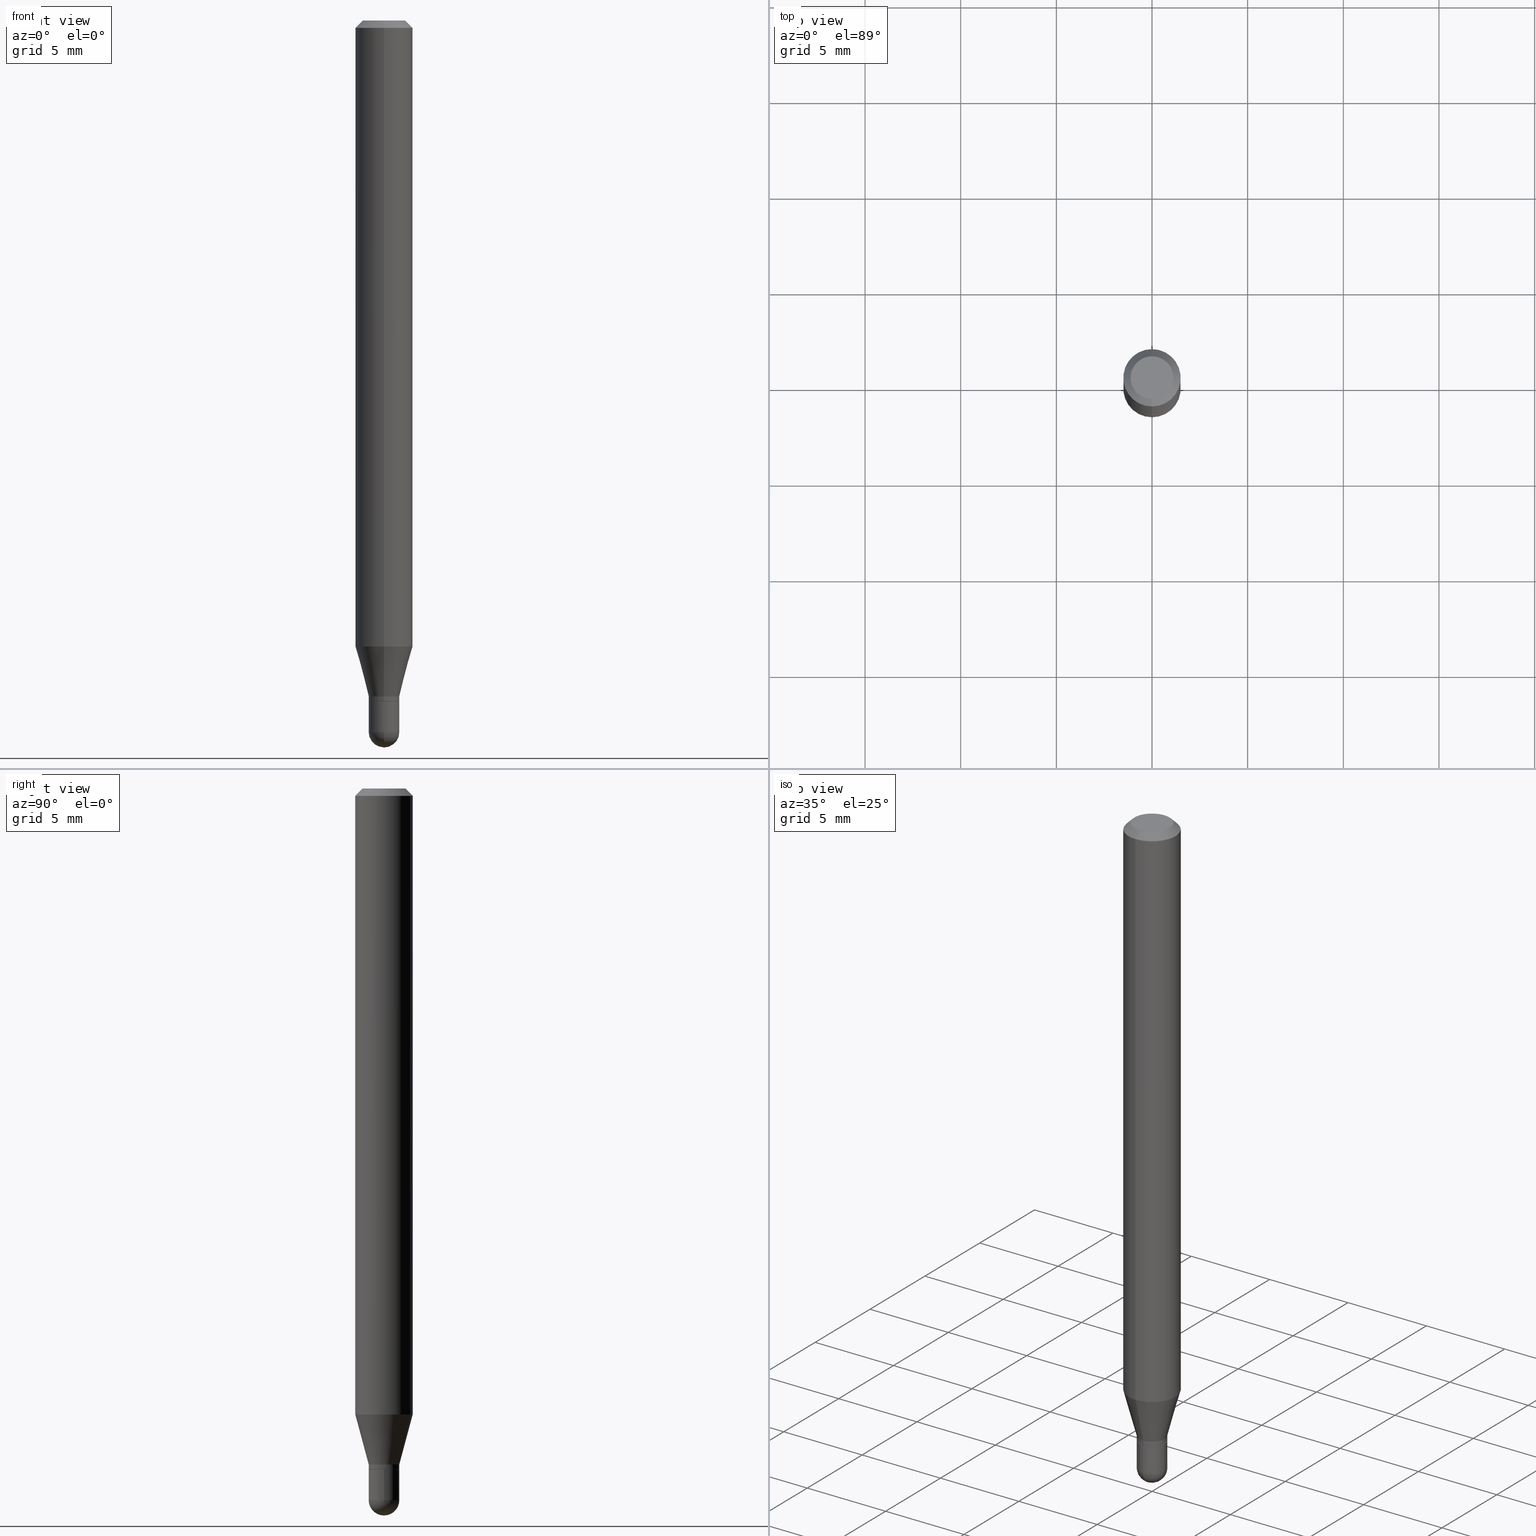
[diagram: canonical four-view strip — front | top / right | iso, engineering-drawing reading convention]
A machine part, canonical four-view strip (front | top / right | iso — engineering-drawing reading convention). The complete STEP part file that produces these views, byte-faithful:
ISO-10303-21;
HEADER;
FILE_DESCRIPTION (( 'STEP AP203' ),
    '1' );
FILE_NAME ('02921.STEP',
    '2024-03-07T21:44:08',
    ( '' ),
    ( '' ),
    'SwSTEP 2.0',
    'SolidWorks 2023',
    '' );
FILE_SCHEMA (( 'CONFIG_CONTROL_DESIGN' ));
ENDSEC;

DATA;
#1 = DIRECTION ( 'NONE',  ( -6.982962677686265922E-15, -1.000000000000000000, 3.491461542742673590E-15 ) ) ;
#2 = EDGE_LOOP ( 'NONE', ( #31, #500, #262, #511 ) ) ;
#3 = DIRECTION ( 'NONE',  ( 2.445482629728212427E-29, -3.491461542742673984E-15, -1.000000000000000000 ) ) ;
#4 = APPROVAL_PERSON_ORGANIZATION ( #251, #457, #288 ) ;
#5 = EDGE_LOOP ( 'NONE', ( #475, #204, #338, #79 ) ) ;
#6 = CARTESIAN_POINT ( 'NONE',  ( 3.401910886214915663E-29, -4.856972152109333718E-15, -1.391099999999999781 ) ) ;
#7 = PERSON_AND_ORGANIZATION ( #178, #12 ) ;
#8 = AXIS2_PLACEMENT_3D ( 'NONE', #264, #173, #327 ) ;
#9 = ORIENTED_EDGE ( 'NONE', *, *, #394, .F. ) ;
#10 = APPROVAL_DATE_TIME ( #395, #429 ) ;
#11 = ADVANCED_FACE ( 'NONE', ( #332 ), #326, .T. ) ;
#12 = ORGANIZATION ( 'UNSPECIFIED', 'UNSPECIFIED', '' ) ;
#13 = DATE_TIME_ROLE ( 'classification_date' ) ;
#14 = DIRECTION ( 'NONE',  ( -2.445482629728212427E-29, 3.491461542742673590E-15, 1.000000000000000000 ) ) ;
#15 = ADVANCED_FACE ( 'NONE', ( #375 ), #142, .F. ) ;
#16 = APPROVAL_ROLE ( '' ) ;
#17 = CYLINDRICAL_SURFACE ( 'NONE', #54, 0.03150000000000000716 ) ;
#18 = AXIS2_PLACEMENT_3D ( 'NONE', #87, #241, #163 ) ;
#19 = FACE_OUTER_BOUND ( 'NONE', #222, .T. ) ;
#20 = ORIENTED_EDGE ( 'NONE', *, *, #155, .T. ) ;
#21 = AXIS2_PLACEMENT_3D ( 'NONE', #65, #99, #143 ) ;
#22 = DIRECTION ( 'NONE',  ( -2.445468806185136877E-29, 3.491481338843145188E-15, 1.000000000000000000 ) ) ;
#23 = EDGE_CURVE ( 'NONE', #33, #393, #139, .T. ) ;
#24 = DIRECTION ( 'NONE',  ( -6.982962677686265133E-15, -1.000000000000000000, 3.491461542742673984E-15 ) ) ;
#25 = DIRECTION ( 'NONE',  ( -6.982962677686265922E-15, -1.000000000000000000, 0.000000000000000000 ) ) ;
#26 = DIRECTION ( 'NONE',  ( -2.445468806185136877E-29, 3.491481338843145188E-15, 1.000000000000000000 ) ) ;
#27 = AXIS2_PLACEMENT_3D ( 'NONE', #374, #136, #218 ) ;
#28 = LOCAL_TIME ( 16, 44, 8.000000000000000000, #359 ) ;
#29 = FACE_OUTER_BOUND ( 'NONE', #131, .T. ) ;
#30 = CARTESIAN_POINT ( 'NONE',  ( 0.000000000000000000, 0.000000000000000000, 0.000000000000000000 ) ) ;
#31 = ORIENTED_EDGE ( 'NONE', *, *, #426, .F. ) ;
#32 = CC_DESIGN_PERSON_AND_ORGANIZATION_ASSIGNMENT ( #392, #42, ( #445 ) ) ;
#33 = VERTEX_POINT ( 'NONE', #448 ) ;
#34 = FACE_OUTER_BOUND ( 'NONE', #74, .T. ) ;
#35 = DIRECTION ( 'NONE',  ( 0.000000000000000000, 0.000000000000000000, 1.000000000000000000 ) ) ;
#36 = VECTOR ( 'NONE', #398, 39.37007874015748143 ) ;
#37 = ORIENTED_EDGE ( 'NONE', *, *, #379, .T. ) ;
#38 = FACE_OUTER_BOUND ( 'NONE', #114, .T. ) ;
#39 = DIRECTION ( 'NONE',  ( 1.000000000000000000, 0.000000000000000000, 0.000000000000000000 ) ) ;
#40 = AXIS2_PLACEMENT_3D ( 'NONE', #107, #499, #442 ) ;
#41 = EDGE_LOOP ( 'NONE', ( #198, #385 ) ) ;
#42 = PERSON_AND_ORGANIZATION_ROLE ( 'design_owner' ) ;
#43 = VERTEX_POINT ( 'NONE', #408 ) ;
#44 = ORIENTED_EDGE ( 'NONE', *, *, #334, .T. ) ;
#45 = VERTEX_POINT ( 'NONE', #213 ) ;
#46 = APPROVAL_STATUS ( 'not_yet_approved' ) ;
#47 = ADVANCED_FACE ( 'NONE', ( #221 ), #294, .T. ) ;
#48 = VERTEX_POINT ( 'NONE', #185 ) ;
#49 = APPLICATION_CONTEXT ( 'configuration controlled 3d designs of mechanical parts and assemblies' ) ;
#50 = ORIENTED_EDGE ( 'NONE', *, *, #357, .T. ) ;
#51 = CARTESIAN_POINT ( 'NONE',  ( -3.536586717851222218E-16, -0.04404999999999999888, 6.213319602340940771E-17 ) ) ;
#52 = DATE_TIME_ROLE ( 'creation_date' ) ;
#53 = EDGE_LOOP ( 'NONE', ( #238, #345, #256, #119, #315 ) ) ;
#54 = AXIS2_PLACEMENT_3D ( 'NONE', #58, #135, #413 ) ;
#55 = EDGE_CURVE ( 'NONE', #387, #202, #410, .T. ) ;
#56 = PRODUCT_DEFINITION_FORMATION_WITH_SPECIFIED_SOURCE ( 'ANY', '', #445, .NOT_KNOWN. ) ;
#57 = CALENDAR_DATE ( 2024, 7, 3 ) ;
#58 = CARTESIAN_POINT ( 'NONE',  ( 0.000000000000000000, 0.000000000000000000, 0.000000000000000000 ) ) ;
#59 = ORIENTED_EDGE ( 'NONE', *, *, #307, .T. ) ;
#60 = CARTESIAN_POINT ( 'NONE',  ( 3.426365712512197686E-29, -4.891886767536760217E-15, -1.401100000000000012 ) ) ;
#61 = ORIENTED_EDGE ( 'NONE', *, *, #512, .F. ) ;
#62 = AXIS2_PLACEMENT_3D ( 'NONE', #78, #35, #39 ) ;
#63 = EDGE_CURVE ( 'NONE', #192, #125, #140, .T. ) ;
#64 = DIRECTION ( 'NONE',  ( -2.445482629728212427E-29, 3.491461542742673984E-15, 1.000000000000000000 ) ) ;
#65 = CARTESIAN_POINT ( 'NONE',  ( 3.427569078749087191E-29, -4.893660244522552864E-15, -1.401599999999999957 ) ) ;
#66 = EDGE_LOOP ( 'NONE', ( #462, #363, #278, #148 ) ) ;
#67 = CIRCLE ( 'NONE', #495, 0.03149999999999991696 ) ;
#68 = CARTESIAN_POINT ( 'NONE',  ( 3.216982236154178205E-16, 0.03149999999999505973, -1.391099999999999781 ) ) ;
#69 = LINE ( 'NONE', #367, #147 ) ;
#70 = CC_DESIGN_PERSON_AND_ORGANIZATION_ASSIGNMENT ( #170, #166, ( #267 ) ) ;
#71 = ORIENTED_EDGE ( 'NONE', *, *, #171, .T. ) ;
#72 = CARTESIAN_POINT ( 'NONE',  ( 3.578939839727836152E-29, -5.117481206286984227E-15, -1.464599999999999902 ) ) ;
#73 = DIRECTION ( 'NONE',  ( -6.982962677686265922E-15, -1.000000000000000000, 0.000000000000000000 ) ) ;
#74 = EDGE_LOOP ( 'NONE', ( #61, #195, #349, #352 ) ) ;
#75 = DIRECTION ( 'NONE',  ( -6.982962677686265922E-15, -1.000000000000000000, 3.491461542742673984E-15 ) ) ;
#76 = ORIENTED_EDGE ( 'NONE', *, *, #146, .T. ) ;
#77 = VECTOR ( 'NONE', #227, 39.37007874015748143 ) ;
#78 = CARTESIAN_POINT ( 'NONE',  ( 0.000000000000000000, 0.000000000000000000, 0.000000000000000000 ) ) ;
#79 = ORIENTED_EDGE ( 'NONE', *, *, #186, .F. ) ;
#80 = DIRECTION ( 'NONE',  ( -2.445482629728212427E-29, 3.491461542742673984E-15, 1.000000000000000000 ) ) ;
#81 = EDGE_LOOP ( 'NONE', ( #71, #20 ) ) ;
#82 = CARTESIAN_POINT ( 'NONE',  ( 4.123439461173743285E-16, 0.05904999999999994975, -0.01500000000000029955 ) ) ;
#83 = EDGE_CURVE ( 'NONE', #242, #33, #226, .T. ) ;
#84 = DIRECTION ( 'NONE',  ( -2.445482629728212427E-29, 3.491461542742673590E-15, 1.000000000000000000 ) ) ;
#85 = AXIS2_PLACEMENT_3D ( 'NONE', #123, #482, #129 ) ;
#86 = ORIENTED_EDGE ( 'NONE', *, *, #83, .F. ) ;
#87 = CARTESIAN_POINT ( 'NONE',  ( 3.150471253806504168E-29, -4.497987060085641190E-15, -1.288282000251477433 ) ) ;
#88 = APPLICATION_PROTOCOL_DEFINITION ( 'international standard', 'config_control_design', 1994, #261 ) ;
#89 = ORIENTED_EDGE ( 'NONE', *, *, #186, .T. ) ;
#90 = DATE_AND_TIME ( #57, #247 ) ;
#91 = MANIFOLD_SOLID_BREP ( 'Body-Move/Copy2[1]', #271 ) ;
#92 = DIRECTION ( 'NONE',  ( -2.445482629728212147E-29, 3.491461542742673590E-15, 1.000000000000000000 ) ) ;
#93 = ORIENTED_EDGE ( 'NONE', *, *, #259, .F. ) ;
#94 = DIRECTION ( 'NONE',  ( -2.445482629728212427E-29, 3.491461542742673984E-15, 1.000000000000000000 ) ) ;
#95 = VERTEX_POINT ( 'NONE', #304 ) ;
#96 = PERSON_AND_ORGANIZATION ( #178, #12 ) ;
#97 = LOCAL_TIME ( 16, 44, 8.000000000000000000, #210 ) ;
#98 = CARTESIAN_POINT ( 'NONE',  ( -2.199633243470827763E-16, -0.03150000000000477418, -1.391099999999999781 ) ) ;
#99 = DIRECTION ( 'NONE',  ( -2.445468806185136597E-29, 3.491481338843145583E-15, 1.000000000000000000 ) ) ;
#100 = DIRECTION ( 'NONE',  ( -2.445468806185136597E-29, 3.491481338843145583E-15, 1.000000000000000000 ) ) ;
#101 = ADVANCED_FACE ( 'NONE', ( #370 ), #17, .T. ) ;
#102 = CARTESIAN_POINT ( 'NONE',  ( -4.051124067684085231E-16, -0.05905000000000005383, -0.01499999999999988495 ) ) ;
#103 = SPHERICAL_SURFACE ( 'NONE', #281, 0.03149999999999996553 ) ;
#104 = VECTOR ( 'NONE', #201, 39.37007874015748143 ) ;
#105 = CARTESIAN_POINT ( 'NONE',  ( 3.578939839727836152E-29, -5.117481206286984227E-15, -1.464599999999999902 ) ) ;
#106 = DIRECTION ( 'NONE',  ( -6.982962677686266711E-15, -1.000000000000000000, 0.000000000000000000 ) ) ;
#107 = CARTESIAN_POINT ( 'NONE',  ( 2.199633243471516537E-16, 0.03149999999999510830, -1.401599999999999957 ) ) ;
#108 = AXIS2_PLACEMENT_3D ( 'NONE', #305, #491, #138 ) ;
#109 = DIRECTION ( 'NONE',  ( -2.445482629728212427E-29, 3.491461542742673984E-15, 1.000000000000000000 ) ) ;
#110 = ADVANCED_FACE ( 'NONE', ( #19 ), #444, .T. ) ;
#111 = LINE ( 'NONE', #422, #77 ) ;
#112 = ADVANCED_BREP_SHAPE_REPRESENTATION ( '02921', ( #91, #260, #62 ), #355 ) ;
#113 = CYLINDRICAL_SURFACE ( 'NONE', #240, 0.03149999999999992389 ) ;
#114 = EDGE_LOOP ( 'NONE', ( #423, #274 ) ) ;
#115 = FACE_OUTER_BOUND ( 'NONE', #174, .T. ) ;
#116 = VERTEX_POINT ( 'NONE', #418 ) ;
#117 = AXIS2_PLACEMENT_3D ( 'NONE', #342, #503, #149 ) ;
#118 = DIRECTION ( 'NONE',  ( -2.445482629728212427E-29, 3.491461542742673984E-15, 1.000000000000000000 ) ) ;
#119 = ORIENTED_EDGE ( 'NONE', *, *, #447, .F. ) ;
#120 = ADVANCED_FACE ( 'NONE', ( #215 ), #453, .F. ) ;
#121 = DIRECTION ( 'NONE',  ( -2.445482629728212427E-29, 3.491461542742673984E-15, 1.000000000000000000 ) ) ;
#122 = ORIENTED_EDGE ( 'NONE', *, *, #405, .T. ) ;
#123 = CARTESIAN_POINT ( 'NONE',  ( 3.581633613538751591E-29, -5.113623568869670202E-15, -1.464599999999999902 ) ) ;
#124 = CIRCLE ( 'NONE', #190, 0.05904999999999999832 ) ;
#125 = VERTEX_POINT ( 'NONE', #98 ) ;
#126 = AXIS2_PLACEMENT_3D ( 'NONE', #188, #121, #73 ) ;
#127 = LINE ( 'NONE', #285, #478 ) ;
#128 = EDGE_CURVE ( 'NONE', #192, #354, #230, .T. ) ;
#129 = DIRECTION ( 'NONE',  ( 1.000000000000000000, -6.982962677686254878E-15, 0.000000000000000000 ) ) ;
#130 = APPROVAL_PERSON_ORGANIZATION ( #325, #183, #16 ) ;
#131 = EDGE_LOOP ( 'NONE', ( #9, #76, #89, #200 ) ) ;
#132 = COORDINATED_UNIVERSAL_TIME_OFFSET ( 5, 0, .BEHIND. ) ;
#133 = CARTESIAN_POINT ( 'NONE',  ( -2.164718430082399417E-16, -0.03100000000000489170, -1.401599999999999957 ) ) ;
#134 = CC_DESIGN_PERSON_AND_ORGANIZATION_ASSIGNMENT ( #7, #361, ( #56 ) ) ;
#135 = DIRECTION ( 'NONE',  ( -2.445468806185136597E-29, 3.491481338843145583E-15, 1.000000000000000000 ) ) ;
#136 = DIRECTION ( 'NONE',  ( 2.445482629728212147E-29, -3.491461542742673590E-15, -1.000000000000000000 ) ) ;
#137 = EDGE_CURVE ( 'NONE', #152, #202, #416, .T. ) ;
#138 = DIRECTION ( 'NONE',  ( 6.982962677686265922E-15, 1.000000000000000000, -3.505890868245046092E-15 ) ) ;
#139 = CIRCLE ( 'NONE', #224, 0.03150000000000000716 ) ;
#140 = LINE ( 'NONE', #377, #216 ) ;
#141 = ORIENTED_EDGE ( 'NONE', *, *, #477, .F. ) ;
#142 = PLANE ( 'NONE',  #40 ) ;
#143 = DIRECTION ( 'NONE',  ( 1.000000000000000000, -6.982962677686255667E-15, 0.000000000000000000 ) ) ;
#144 = CARTESIAN_POINT ( 'NONE',  ( 4.195754854663704065E-16, 0.05904999999999547416, -1.288282000251477655 ) ) ;
#145 = CIRCLE ( 'NONE', #324, 0.05904999999999999832 ) ;
#146 = EDGE_CURVE ( 'NONE', #390, #95, #298, .T. ) ;
#147 = VECTOR ( 'NONE', #14, 39.37007874015748143 ) ;
#148 = ORIENTED_EDGE ( 'NONE', *, *, #290, .F. ) ;
#149 = DIRECTION ( 'NONE',  ( 1.000000000000000000, -6.982962677686254878E-15, 0.000000000000000000 ) ) ;
#150 = LENGTH_MEASURE_WITH_UNIT ( LENGTH_MEASURE( 0.02539999999999999897 ), #343 );
#151 = DIRECTION ( 'NONE',  ( -2.445482629728212427E-29, 3.491461542742673984E-15, 1.000000000000000000 ) ) ;
#152 = VERTEX_POINT ( 'NONE', #455 ) ;
#153 = CARTESIAN_POINT ( 'NONE',  ( 0.03150000000000000716, -2.199633243471174122E-16, 1.535995684375720062E-30 ) ) ;
#154 = VECTOR ( 'NONE', #26, 39.37007874015748143 ) ;
#155 = EDGE_CURVE ( 'NONE', #48, #45, #231, .T. ) ;
#156 = ORIENTED_EDGE ( 'NONE', *, *, #417, .T. ) ;
#157 = ORIENTED_EDGE ( 'NONE', *, *, #447, .T. ) ;
#158 = EDGE_CURVE ( 'NONE', #354, #464, #69, .T. ) ;
#159 = LINE ( 'NONE', #82, #36 ) ;
#160 = CC_DESIGN_DATE_AND_TIME_ASSIGNMENT ( #365, #13, ( #267 ) ) ;
#161 = DIRECTION ( 'NONE',  ( -2.445468806185136597E-29, 3.491481338843145583E-15, 1.000000000000000000 ) ) ;
#162 = EDGE_LOOP ( 'NONE', ( #141, #383, #50, #157, #468 ) ) ;
#163 = DIRECTION ( 'NONE',  ( -6.982962677686265922E-15, -1.000000000000000000, 4.626330217890369336E-15 ) ) ;
#164 = CIRCLE ( 'NONE', #341, 0.03149999999999996553 ) ;
#165 = FACE_OUTER_BOUND ( 'NONE', #5, .T. ) ;
#166 = PERSON_AND_ORGANIZATION_ROLE ( 'classification_officer' ) ;
#167 = AXIS2_PLACEMENT_3D ( 'NONE', #331, #182, #493 ) ;
#168 = PRODUCT_RELATED_PRODUCT_CATEGORY ( 'detail', '', ( #445 ) ) ;
#169 = DIRECTION ( 'NONE',  ( -2.445482629728212427E-29, 3.491461542742673984E-15, 1.000000000000000000 ) ) ;
#170 = PERSON_AND_ORGANIZATION ( #178, #12 ) ;
#171 = EDGE_CURVE ( 'NONE', #45, #48, #297, .T. ) ;
#172 = CIRCLE ( 'NONE', #117, 0.03150000000000000716 ) ;
#173 = DIRECTION ( 'NONE',  ( -2.445468806185136597E-29, 3.491481338843145583E-15, 1.000000000000000000 ) ) ;
#174 = EDGE_LOOP ( 'NONE', ( #236, #301, #225, #309 ) ) ;
#175 = PERSON_AND_ORGANIZATION_ROLE ( 'design_supplier' ) ;
#176 = VECTOR ( 'NONE', #490, 39.37007874015748143 ) ;
#177 = CARTESIAN_POINT ( 'NONE',  ( 0.000000000000000000, 0.000000000000000000, 0.000000000000000000 ) ) ;
#178 = PERSON ( 'UNSPECIFIED', 'UNSPECIFIED', 'UNSPECIFIED', ('UNSPECIFIED'), ('UNSPECIFIED'), ('UNSPECIFIED') ) ;
#179 = DIRECTION ( 'NONE',  ( -6.982962677686265922E-15, -1.000000000000000000, 0.000000000000000000 ) ) ;
#180 = LOCAL_TIME ( 16, 44, 8.000000000000000000, #132 ) ;
#181 = ORIENTED_EDGE ( 'NONE', *, *, #137, .T. ) ;
#182 = DIRECTION ( 'NONE',  ( -2.445482629728212427E-29, 3.491461542742673984E-15, 1.000000000000000000 ) ) ;
#183 = APPROVAL ( #257, 'UNSPECIFIED' ) ;
#184 = CYLINDRICAL_SURFACE ( 'NONE', #496, 0.03149999999999992389 ) ;
#185 = CARTESIAN_POINT ( 'NONE',  ( -0.03150000000000000022, -4.779820944931679381E-15, -1.401599999999999957 ) ) ;
#186 = EDGE_CURVE ( 'NONE', #95, #192, #487, .T. ) ;
#187 = LINE ( 'NONE', #153, #154 ) ;
#188 = CARTESIAN_POINT ( 'NONE',  ( 3.427588453827062320E-29, -4.893632498308130950E-15, -1.401599999999999957 ) ) ;
#189 = PRODUCT_DEFINITION_SHAPE ( 'NONE', 'NONE',  #323 ) ;
#190 = AXIS2_PLACEMENT_3D ( 'NONE', #268, #118, #339 ) ;
#191 = LINE ( 'NONE', #470, #282 ) ;
#192 = VERTEX_POINT ( 'NONE', #474 ) ;
#193 = DIRECTION ( 'NONE',  ( -2.445482629728212427E-29, 3.491461542742673984E-15, 1.000000000000000000 ) ) ;
#194 = UNCERTAINTY_MEASURE_WITH_UNIT (LENGTH_MEASURE( 1.000000000000000082E-05 ), #465, 'distance_accuracy_value', 'NONE');
#195 = ORIENTED_EDGE ( 'NONE', *, *, #214, .T. ) ;
#196 = CARTESIAN_POINT ( 'NONE',  ( 3.401910886214915663E-29, -4.856972152109333718E-15, -1.391099999999999781 ) ) ;
#197 = ADVANCED_FACE ( 'NONE', ( #29 ), #461, .T. ) ;
#198 = ORIENTED_EDGE ( 'NONE', *, *, #454, .T. ) ;
#199 = CC_DESIGN_SECURITY_CLASSIFICATION ( #267, ( #56 ) ) ;
#200 = ORIENTED_EDGE ( 'NONE', *, *, #386, .F. ) ;
#201 = DIRECTION ( 'NONE',  ( 5.024295867788190974E-15, 0.7071067811865681119, 0.7071067811865270336 ) ) ;
#202 = VERTEX_POINT ( 'NONE', #430 ) ;
#203 = EDGE_CURVE ( 'NONE', #492, #152, #111, .T. ) ;
#204 = ORIENTED_EDGE ( 'NONE', *, *, #394, .T. ) ;
#205 = FACE_OUTER_BOUND ( 'NONE', #507, .T. ) ;
#206 = APPROVAL_STATUS ( 'not_yet_approved' ) ;
#207 = VECTOR ( 'NONE', #283, 39.37007874015748854 ) ;
#208 = APPLICATION_PROTOCOL_DEFINITION ( 'international standard', 'config_control_design', 1994, #49 ) ;
#209 = CARTESIAN_POINT ( 'NONE',  ( 3.668223944592340728E-31, -5.237192314114042679E-17, -0.01500000000000009139 ) ) ;
#210 = COORDINATED_UNIVERSAL_TIME_OFFSET ( 5, 0, .BEHIND. ) ;
#211 = CIRCLE ( 'NONE', #388, 0.04404999999999999888 ) ;
#212 = CALENDAR_DATE ( 2024, 7, 3 ) ;
#213 = CARTESIAN_POINT ( 'NONE',  ( 0.03150000000000000022, -5.113623568869669413E-15, -1.401599999999999957 ) ) ;
#214 = EDGE_CURVE ( 'NONE', #43, #242, #322, .T. ) ;
#215 = FACE_OUTER_BOUND ( 'NONE', #41, .T. ) ;
#216 = VECTOR ( 'NONE', #337, 39.37007874015748143 ) ;
#217 = AXIS2_PLACEMENT_3D ( 'NONE', #460, #258, #406 ) ;
#218 = DIRECTION ( 'NONE',  ( 6.982962677686265922E-15, 1.000000000000000000, -3.491461542742673590E-15 ) ) ;
#219 = ORIENTED_EDGE ( 'NONE', *, *, #512, .T. ) ;
#220 = CONICAL_SURFACE ( 'NONE', #510, 0.03149999999999991696, 0.2617993877991504625 ) ;
#221 = FACE_OUTER_BOUND ( 'NONE', #431, .T. ) ;
#222 = EDGE_LOOP ( 'NONE', ( #234, #458, #37, #277 ) ) ;
#223 = DIRECTION ( 'NONE',  ( -6.982962677686265922E-15, -1.000000000000000000, 3.491461542742673984E-15 ) ) ;
#224 = AXIS2_PLACEMENT_3D ( 'NONE', #456, #100, #289 ) ;
#225 = ORIENTED_EDGE ( 'NONE', *, *, #340, .F. ) ;
#226 = CIRCLE ( 'NONE', #217, 0.03150000000000000716 ) ;
#227 = DIRECTION ( 'NONE',  ( -2.445482629728212427E-29, 3.491461542742673590E-15, 1.000000000000000000 ) ) ;
#228 = EDGE_CURVE ( 'NONE', #378, #242, #172, .T. ) ;
#229 = DIRECTION ( 'NONE',  ( -1.000000000000000000, 6.982962677686265922E-15, -4.883557194083112340E-29 ) ) ;
#230 = CIRCLE ( 'NONE', #407, 0.03149999999999992389 ) ;
#231 = CIRCLE ( 'NONE', #21, 0.03150000000000000022 ) ;
#232 = EDGE_LOOP ( 'NONE', ( #122, #505, #396, #93 ) ) ;
#233 = ADVANCED_FACE ( 'NONE', ( #308 ), #113, .T. ) ;
#234 = ORIENTED_EDGE ( 'NONE', *, *, #417, .F. ) ;
#235 = DIRECTION ( 'NONE',  ( -6.982962677686266711E-15, -1.000000000000000000, 0.000000000000000000 ) ) ;
#236 = ORIENTED_EDGE ( 'NONE', *, *, #128, .T. ) ;
#237 = APPROVAL_PERSON_ORGANIZATION ( #286, #429, #368 ) ;
#238 = ORIENTED_EDGE ( 'NONE', *, *, #83, .T. ) ;
#239 = VECTOR ( 'NONE', #317, 39.37007874015748143 ) ;
#240 = AXIS2_PLACEMENT_3D ( 'NONE', #30, #193, #310 ) ;
#241 = DIRECTION ( 'NONE',  ( -2.445482629728212427E-29, 3.491461542742673984E-15, 1.000000000000000000 ) ) ;
#242 = VERTEX_POINT ( 'NONE', #244 ) ;
#243 = APPROVAL_DATE_TIME ( #90, #183 ) ;
#244 = CARTESIAN_POINT ( 'NONE',  ( 2.238209617644672068E-16, 0.03149999999999487238, -1.464599999999999902 ) ) ;
#245 = CARTESIAN_POINT ( 'NONE',  ( 0.03150000000000001410, -5.223605231043228871E-15, -1.464599999999999902 ) ) ;
#246 = PERSON_AND_ORGANIZATION_ROLE ( 'creator' ) ;
#247 = LOCAL_TIME ( 16, 44, 8.000000000000000000, #486 ) ;
#248 = CARTESIAN_POINT ( 'NONE',  ( -4.123439461173739834E-16, -0.05904999999999999832, 2.061708040989548980E-16 ) ) ;
#249 = VECTOR ( 'NONE', #84, 39.37007874015748143 ) ;
#250 = DIRECTION ( 'NONE',  ( -2.445482629728212427E-29, 3.491461542742673984E-15, 1.000000000000000000 ) ) ;
#251 = PERSON_AND_ORGANIZATION ( #178, #12 ) ;
#252 = ADVANCED_FACE ( 'NONE', ( #253 ), #403, .T. ) ;
#253 = FACE_OUTER_BOUND ( 'NONE', #53, .T. ) ;
#254 = DESIGN_CONTEXT ( 'detailed design', #49, 'design' ) ;
#255 = CC_DESIGN_PERSON_AND_ORGANIZATION_ASSIGNMENT ( #402, #246, ( #323 ) ) ;
#256 = ORIENTED_EDGE ( 'NONE', *, *, #171, .F. ) ;
#257 = APPROVAL_STATUS ( 'not_yet_approved' ) ;
#258 = DIRECTION ( 'NONE',  ( -2.445468806185136597E-29, 3.491481338843145583E-15, 1.000000000000000000 ) ) ;
#259 = EDGE_CURVE ( 'NONE', #280, #202, #362, .T. ) ;
#260 = MANIFOLD_SOLID_BREP ( 'Body-Move/Copy2[2]', #485 ) ;
#261 = APPLICATION_CONTEXT ( 'configuration controlled 3d designs of mechanical parts and assemblies' ) ;
#262 = ORIENTED_EDGE ( 'NONE', *, *, #488, .T. ) ;
#263 = DIRECTION ( 'NONE',  ( -2.445482629728212427E-29, 3.491461542742673984E-15, 1.000000000000000000 ) ) ;
#264 = CARTESIAN_POINT ( 'NONE',  ( 3.427569078749087191E-29, -4.893660244522552864E-15, -1.401599999999999957 ) ) ;
#265 = CARTESIAN_POINT ( 'NONE',  ( 3.401910886214915663E-29, -4.856972152109333718E-15, -1.391099999999999781 ) ) ;
#266 = DIRECTION ( 'NONE',  ( -2.445482629728212427E-29, 3.491461542742673984E-15, 1.000000000000000000 ) ) ;
#267 = SECURITY_CLASSIFICATION ( '', '', #404 ) ;
#268 = CARTESIAN_POINT ( 'NONE',  ( 3.668223944592340728E-31, -5.237192314114042679E-17, -0.01500000000000009139 ) ) ;
#269 = ADVANCED_FACE ( 'NONE', ( #409 ), #220, .T. ) ;
#270 = CARTESIAN_POINT ( 'NONE',  ( 3.401910886214915663E-29, -4.856972152109333718E-15, -1.391099999999999781 ) ) ;
#271 = CLOSED_SHELL ( 'NONE', ( #252, #302, #15, #484, #101 ) ) ;
#272 = DIRECTION ( 'NONE',  ( -6.982962677686265922E-15, -1.000000000000000000, 0.000000000000000000 ) ) ;
#273 = EDGE_CURVE ( 'NONE', #95, #390, #314, .T. ) ;
#274 = ORIENTED_EDGE ( 'NONE', *, *, #146, .F. ) ;
#275 = CIRCLE ( 'NONE', #347, 0.03149999999999992389 ) ;
#276 = DIRECTION ( 'NONE',  ( -2.445482629728212427E-29, 3.491461542742673984E-15, 1.000000000000000000 ) ) ;
#277 = ORIENTED_EDGE ( 'NONE', *, *, #307, .F. ) ;
#278 = ORIENTED_EDGE ( 'NONE', *, *, #63, .T. ) ;
#279 = LINE ( 'NONE', #428, #104 ) ;
#280 = VERTEX_POINT ( 'NONE', #466 ) ;
#281 = AXIS2_PLACEMENT_3D ( 'NONE', #72, #414, #272 ) ;
#282 = VECTOR ( 'NONE', #22, 39.37007874015748143 ) ;
#283 = DIRECTION ( 'NONE',  ( -1.807323732225331323E-15, -0.2588190451025183525, 0.9659258262890689783 ) ) ;
#284 = ORIENTED_EDGE ( 'NONE', *, *, #259, .T. ) ;
#285 = CARTESIAN_POINT ( 'NONE',  ( 2.238209617644649881E-16, 0.03149999999999505973, -1.391099999999999781 ) ) ;
#286 = PERSON_AND_ORGANIZATION ( #178, #12 ) ;
#287 = CARTESIAN_POINT ( 'NONE',  ( 3.427588453827062320E-29, -4.893632498308130950E-15, -1.401599999999999957 ) ) ;
#288 = APPROVAL_ROLE ( '' ) ;
#289 = DIRECTION ( 'NONE',  ( 1.000000000000000000, -6.982962677686254878E-15, 0.000000000000000000 ) ) ;
#290 = EDGE_CURVE ( 'NONE', #464, #125, #67, .T. ) ;
#291 = PLANE ( 'NONE',  #312 ) ;
#292 = AXIS2_PLACEMENT_3D ( 'NONE', #494, #276, #75 ) ;
#293 = AXIS2_PLACEMENT_3D ( 'NONE', #328, #151, #25 ) ;
#294 = CYLINDRICAL_SURFACE ( 'NONE', #336, 0.05904999999999999832 ) ;
#295 = CC_DESIGN_APPROVAL ( #457, ( #323 ) ) ;
#296 = DIRECTION ( 'NONE',  ( -2.445482629728212427E-29, 3.491461542742673984E-15, 1.000000000000000000 ) ) ;
#297 = CIRCLE ( 'NONE', #8, 0.03150000000000000022 ) ;
#298 = CIRCLE ( 'NONE', #333, 0.03099999999999999978 ) ;
#299 = DIRECTION ( 'NONE',  ( -6.982962677686265922E-15, -1.000000000000000000, 0.000000000000000000 ) ) ;
#300 = CARTESIAN_POINT ( 'NONE',  ( 3.427588453827062320E-29, -4.893632498308130950E-15, -1.401599999999999957 ) ) ;
#301 = ORIENTED_EDGE ( 'NONE', *, *, #158, .T. ) ;
#302 = ADVANCED_FACE ( 'NONE', ( #34 ), #303, .T. ) ;
#303 = SPHERICAL_SURFACE ( 'NONE', #489, 0.03149999999999996553 ) ;
#304 = CARTESIAN_POINT ( 'NONE',  ( -2.164718430082399417E-16, -0.03100000000000489170, -1.401599999999999957 ) ) ;
#305 = CARTESIAN_POINT ( 'NONE',  ( 3.668223944592340728E-31, -5.237192314114042679E-17, -0.01500000000000009139 ) ) ;
#306 = CARTESIAN_POINT ( 'NONE',  ( 0.000000000000000000, 0.000000000000000000, 0.000000000000000000 ) ) ;
#307 = EDGE_CURVE ( 'NONE', #492, #280, #145, .T. ) ;
#308 = FACE_OUTER_BOUND ( 'NONE', #66, .T. ) ;
#309 = ORIENTED_EDGE ( 'NONE', *, *, #63, .F. ) ;
#310 = DIRECTION ( 'NONE',  ( -6.982962677686265922E-15, -1.000000000000000000, 3.491461542742673984E-15 ) ) ;
#311 = ORIENTED_EDGE ( 'NONE', *, *, #203, .F. ) ;
#312 = AXIS2_PLACEMENT_3D ( 'NONE', #439, #92, #1 ) ;
#313 = DIRECTION ( 'NONE',  ( -2.445482629728212427E-29, 3.491461542742673984E-15, 1.000000000000000000 ) ) ;
#314 = CIRCLE ( 'NONE', #293, 0.03099999999999999978 ) ;
#315 = ORIENTED_EDGE ( 'NONE', *, *, #228, .T. ) ;
#316 =( NAMED_UNIT ( * ) PLANE_ANGLE_UNIT ( ) SI_UNIT ( $, .RADIAN. ) );
#317 = DIRECTION ( 'NONE',  ( -4.937700262164674260E-15, -0.7071067811865632269, 0.7071067811865319186 ) ) ;
#318 = ORIENTED_EDGE ( 'NONE', *, *, #214, .F. ) ;
#319 = DIRECTION ( 'NONE',  ( -6.982962677686266711E-15, -1.000000000000000000, 0.000000000000000000 ) ) ;
#320 = ORIENTED_EDGE ( 'NONE', *, *, #340, .T. ) ;
#321 = CC_DESIGN_APPROVAL ( #429, ( #56 ) ) ;
#322 = CIRCLE ( 'NONE', #434, 0.03149999999999996553 ) ;
#323 = PRODUCT_DEFINITION ( 'UNKNOWN', '', #56, #254 ) ;
#324 = AXIS2_PLACEMENT_3D ( 'NONE', #509, #94, #476 ) ;
#325 = PERSON_AND_ORGANIZATION ( #178, #12 ) ;
#326 = CONICAL_SURFACE ( 'NONE', #108, 0.05904999999999999832, 0.7853981633974483900 ) ;
#327 = DIRECTION ( 'NONE',  ( 1.000000000000000000, -6.982962677686255667E-15, 0.000000000000000000 ) ) ;
#328 = CARTESIAN_POINT ( 'NONE',  ( 3.427588453827062320E-29, -4.893632498308130950E-15, -1.401599999999999957 ) ) ;
#329 = DIRECTION ( 'NONE',  ( 1.839019923739601499E-15, 0.2588190451025251249, 0.9659258262890670910 ) ) ;
#330 = LOCAL_TIME ( 16, 44, 8.000000000000000000, #440 ) ;
#331 = CARTESIAN_POINT ( 'NONE',  ( 3.668223944592340728E-31, -5.237192314114042679E-17, -0.01500000000000009139 ) ) ;
#332 = FACE_OUTER_BOUND ( 'NONE', #2, .T. ) ;
#333 = AXIS2_PLACEMENT_3D ( 'NONE', #300, #266, #299 ) ;
#334 = EDGE_CURVE ( 'NONE', #116, #152, #159, .T. ) ;
#335 = CARTESIAN_POINT ( 'NONE',  ( 3.578939839727836152E-29, -5.117481206286984227E-15, -1.464599999999999902 ) ) ;
#336 = AXIS2_PLACEMENT_3D ( 'NONE', #177, #263, #451 ) ;
#337 = DIRECTION ( 'NONE',  ( -2.445482629728212427E-29, 3.491461542742673590E-15, 1.000000000000000000 ) ) ;
#338 = ORIENTED_EDGE ( 'NONE', *, *, #128, .F. ) ;
#339 = DIRECTION ( 'NONE',  ( -6.982962677686265922E-15, -1.000000000000000000, 3.505890868245046092E-15 ) ) ;
#340 = EDGE_CURVE ( 'NONE', #125, #464, #467, .T. ) ;
#341 = AXIS2_PLACEMENT_3D ( 'NONE', #335, #229, #381 ) ;
#342 = CARTESIAN_POINT ( 'NONE',  ( 3.581633613538751591E-29, -5.113623568869670202E-15, -1.464599999999999902 ) ) ;
#343 =( LENGTH_UNIT ( ) NAMED_UNIT ( * ) SI_UNIT ( $, .METRE. ) );
#344 = CARTESIAN_POINT ( 'NONE',  ( 3.578939839727836152E-29, -5.117481206286984227E-15, -1.464599999999999902 ) ) ;
#345 = ORIENTED_EDGE ( 'NONE', *, *, #477, .T. ) ;
#346 = ORIENTED_EDGE ( 'NONE', *, *, #23, .F. ) ;
#347 = AXIS2_PLACEMENT_3D ( 'NONE', #443, #250, #401 ) ;
#348 = MECHANICAL_CONTEXT ( 'NONE', #261, 'mechanical' ) ;
#349 = ORIENTED_EDGE ( 'NONE', *, *, #228, .F. ) ;
#350 = CARTESIAN_POINT ( 'NONE',  ( 2.238209617644644458E-16, 0.03149999999999492789, -1.401100000000000012 ) ) ;
#351 = CARTESIAN_POINT ( 'NONE',  ( 0.000000000000000000, 0.000000000000000000, 0.000000000000000000 ) ) ;
#352 = ORIENTED_EDGE ( 'NONE', *, *, #357, .F. ) ;
#353 = CARTESIAN_POINT ( 'NONE',  ( -2.199633243470827763E-16, -0.03150000000000477418, -1.391099999999999781 ) ) ;
#354 = VERTEX_POINT ( 'NONE', #350 ) ;
#355 =( GEOMETRIC_REPRESENTATION_CONTEXT ( 3 ) GLOBAL_UNCERTAINTY_ASSIGNED_CONTEXT ( ( #194 ) ) GLOBAL_UNIT_ASSIGNED_CONTEXT ( ( #465, #316, #508 ) ) REPRESENTATION_CONTEXT ( 'NONE', 'WORKASPACE' ) );
#356 = DATE_AND_TIME ( #446, #330 ) ;
#357 = EDGE_CURVE ( 'NONE', #393, #378, #373, .T. ) ;
#358 = DIRECTION ( 'NONE',  ( -2.445482629728212427E-29, 3.491461542742673984E-15, 1.000000000000000000 ) ) ;
#359 = COORDINATED_UNIVERSAL_TIME_OFFSET ( 5, 0, .BEHIND. ) ;
#360 = CARTESIAN_POINT ( 'NONE',  ( 2.220446049250652784E-16, 0.03099999999999510786, -1.401599999999999957 ) ) ;
#361 = PERSON_AND_ORGANIZATION_ROLE ( 'creator' ) ;
#362 = LINE ( 'NONE', #248, #249 ) ;
#363 = ORIENTED_EDGE ( 'NONE', *, *, #386, .T. ) ;
#364 = ADVANCED_FACE ( 'NONE', ( #165 ), #397, .T. ) ;
#365 = DATE_AND_TIME ( #438, #97 ) ;
#366 = AXIS2_PLACEMENT_3D ( 'NONE', #287, #169, #391 ) ;
#367 = CARTESIAN_POINT ( 'NONE',  ( 2.238209617644309685E-16, 0.03149999999999992389, -1.099810385963939656E-16 ) ) ;
#368 = APPROVAL_ROLE ( '' ) ;
#369 = DIRECTION ( 'NONE',  ( -6.982962677686266711E-15, -1.000000000000000000, 0.000000000000000000 ) ) ;
#370 = FACE_OUTER_BOUND ( 'NONE', #162, .T. ) ;
#371 = DIRECTION ( 'NONE',  ( -2.445482629728212427E-29, 3.491461542742673984E-15, 1.000000000000000000 ) ) ;
#372 = ADVANCED_FACE ( 'NONE', ( #38 ), #291, .F. ) ;
#373 = CIRCLE ( 'NONE', #85, 0.03150000000000000716 ) ;
#374 = CARTESIAN_POINT ( 'NONE',  ( 3.075995059520799729E-16, 0.04404999999999999888, -1.996317234250174466E-16 ) ) ;
#375 = FACE_OUTER_BOUND ( 'NONE', #81, .T. ) ;
#376 = DIRECTION ( 'NONE',  ( -6.982962677686265133E-15, -1.000000000000000000, 3.491461542742673984E-15 ) ) ;
#377 = CARTESIAN_POINT ( 'NONE',  ( -2.199633243471168452E-16, -0.03149999999999992389, 1.099810385963939656E-16 ) ) ;
#378 = VERTEX_POINT ( 'NONE', #245 ) ;
#379 = EDGE_CURVE ( 'NONE', #125, #280, #480, .T. ) ;
#380 = DIRECTION ( 'NONE',  ( 7.105427357601000281E-15, 1.000000000000000000, 0.000000000000000000 ) ) ;
#381 = DIRECTION ( 'NONE',  ( -6.982962677686265922E-15, -1.000000000000000000, 0.000000000000000000 ) ) ;
#382 = DIRECTION ( 'NONE',  ( 1.000000000000000000, -7.105427357601001070E-15, 4.926315508542082329E-29 ) ) ;
#383 = ORIENTED_EDGE ( 'NONE', *, *, #23, .T. ) ;
#384 = DIRECTION ( 'NONE',  ( -2.445482629728212427E-29, 3.491461542742673984E-15, 1.000000000000000000 ) ) ;
#385 = ORIENTED_EDGE ( 'NONE', *, *, #426, .T. ) ;
#386 = EDGE_CURVE ( 'NONE', #354, #192, #275, .T. ) ;
#387 = VERTEX_POINT ( 'NONE', #51 ) ;
#388 = AXIS2_PLACEMENT_3D ( 'NONE', #425, #384, #376 ) ;
#389 = ADVANCED_FACE ( 'NONE', ( #205 ), #506, .T. ) ;
#390 = VERTEX_POINT ( 'NONE', #360 ) ;
#391 = DIRECTION ( 'NONE',  ( -6.982962677686265922E-15, -1.000000000000000000, 0.000000000000000000 ) ) ;
#392 = PERSON_AND_ORGANIZATION ( #178, #12 ) ;
#393 = VERTEX_POINT ( 'NONE', #433 ) ;
#394 = EDGE_CURVE ( 'NONE', #390, #354, #279, .T. ) ;
#395 = DATE_AND_TIME ( #212, #28 ) ;
#396 = ORIENTED_EDGE ( 'NONE', *, *, #488, .F. ) ;
#397 = CONICAL_SURFACE ( 'NONE', #366, 0.03099999999999999978, 0.7853981633974739252 ) ;
#398 = DIRECTION ( 'NONE',  ( 4.937700262164548042E-15, 0.7071067811865451302, -0.7071067811865499042 ) ) ;
#399 = DATE_AND_TIME ( #449, #180 ) ;
#400 = AXIS2_PLACEMENT_3D ( 'NONE', #351, #161, #435 ) ;
#401 = DIRECTION ( 'NONE',  ( -6.982962677686265922E-15, -1.000000000000000000, 0.000000000000000000 ) ) ;
#402 = PERSON_AND_ORGANIZATION ( #178, #12 ) ;
#403 = CYLINDRICAL_SURFACE ( 'NONE', #400, 0.03150000000000000716 ) ;
#404 = SECURITY_CLASSIFICATION_LEVEL ( 'unclassified' ) ;
#405 = EDGE_CURVE ( 'NONE', #280, #492, #441, .T. ) ;
#406 = DIRECTION ( 'NONE',  ( 1.000000000000000000, -6.982962677686254878E-15, 0.000000000000000000 ) ) ;
#407 = AXIS2_PLACEMENT_3D ( 'NONE', #60, #371, #179 ) ;
#408 = CARTESIAN_POINT ( 'NONE',  ( 3.654625220217210352E-29, -5.229391687169201091E-15, -1.496099999999999985 ) ) ;
#409 = FACE_OUTER_BOUND ( 'NONE', #479, .T. ) ;
#410 = LINE ( 'NONE', #102, #176 ) ;
#411 = SHAPE_DEFINITION_REPRESENTATION ( #189, #112 ) ;
#412 = CC_DESIGN_APPROVAL ( #183, ( #267 ) ) ;
#413 = DIRECTION ( 'NONE',  ( 1.000000000000000000, -6.982962677686265133E-15, 4.876176775795935793E-29 ) ) ;
#414 = DIRECTION ( 'NONE',  ( 1.000000000000000000, -6.982962677686265922E-15, 4.883557194083112901E-29 ) ) ;
#415 = DIRECTION ( 'NONE',  ( -6.982962677686265922E-15, -1.000000000000000000, 0.000000000000000000 ) ) ;
#416 = CIRCLE ( 'NONE', #167, 0.05904999999999999832 ) ;
#417 = EDGE_CURVE ( 'NONE', #464, #492, #127, .T. ) ;
#418 = CARTESIAN_POINT ( 'NONE',  ( 3.599717260347271507E-16, 0.04404999999999999888, -2.454645658922201386E-16 ) ) ;
#419 = FACE_OUTER_BOUND ( 'NONE', #232, .T. ) ;
#420 = ORIENTED_EDGE ( 'NONE', *, *, #55, .F. ) ;
#421 = CYLINDRICAL_SURFACE ( 'NONE', #292, 0.05904999999999999832 ) ;
#422 = CARTESIAN_POINT ( 'NONE',  ( 4.195754854663390985E-16, 0.05904999999999999832, -2.061708040989548980E-16 ) ) ;
#423 = ORIENTED_EDGE ( 'NONE', *, *, #273, .F. ) ;
#424 = ORIENTED_EDGE ( 'NONE', *, *, #454, .F. ) ;
#425 = CARTESIAN_POINT ( 'NONE',  ( 2.241668402492273798E-45, -3.200472137376428454E-31, -9.166568493440535928E-17 ) ) ;
#426 = EDGE_CURVE ( 'NONE', #387, #116, #211, .T. ) ;
#427 = ORIENTED_EDGE ( 'NONE', *, *, #405, .F. ) ;
#428 = CARTESIAN_POINT ( 'NONE',  ( 2.202682480856652975E-16, 0.03099999999999510786, -1.401599999999999957 ) ) ;
#429 = APPROVAL ( #46, 'UNSPECIFIED' ) ;
#430 = CARTESIAN_POINT ( 'NONE',  ( -4.123439461173736383E-16, -0.05905000000000005383, -0.01499999999999988495 ) ) ;
#431 = EDGE_LOOP ( 'NONE', ( #311, #59, #284, #437 ) ) ;
#432 = AXIS2_PLACEMENT_3D ( 'NONE', #6, #358, #319 ) ;
#433 = CARTESIAN_POINT ( 'NONE',  ( -2.199633243470815191E-16, -0.03150000000000510725, -1.464599999999999902 ) ) ;
#434 = AXIS2_PLACEMENT_3D ( 'NONE', #344, #382, #380 ) ;
#435 = DIRECTION ( 'NONE',  ( 1.000000000000000000, -6.982962677686265133E-15, 4.876176775795935793E-29 ) ) ;
#436 = ADVANCED_FACE ( 'NONE', ( #115 ), #184, .T. ) ;
#437 = ORIENTED_EDGE ( 'NONE', *, *, #137, .F. ) ;
#438 = CALENDAR_DATE ( 2024, 7, 3 ) ;
#439 = CARTESIAN_POINT ( 'NONE',  ( 3.427588453827062320E-29, -4.893632498308130950E-15, -1.401599999999999957 ) ) ;
#440 = COORDINATED_UNIVERSAL_TIME_OFFSET ( 5, 0, .BEHIND. ) ;
#441 = CIRCLE ( 'NONE', #18, 0.05904999999999999832 ) ;
#442 = DIRECTION ( 'NONE',  ( -1.000000000000000000, 6.982962677686265922E-15, -4.876176775795935793E-29 ) ) ;
#443 = CARTESIAN_POINT ( 'NONE',  ( 3.426365712512197686E-29, -4.891886767536760217E-15, -1.401100000000000012 ) ) ;
#444 = CONICAL_SURFACE ( 'NONE', #469, 0.03149999999999991696, 0.2617993877991504625 ) ;
#445 = PRODUCT ( '02921', '02921', '', ( #348 ) ) ;
#446 = CALENDAR_DATE ( 2024, 7, 3 ) ;
#447 = EDGE_CURVE ( 'NONE', #378, #45, #187, .T. ) ;
#448 = CARTESIAN_POINT ( 'NONE',  ( -0.03150000000000001410, -4.779820944931679381E-15, -1.464599999999999902 ) ) ;
#449 = CALENDAR_DATE ( 2024, 7, 3 ) ;
#450 = CC_DESIGN_PERSON_AND_ORGANIZATION_ASSIGNMENT ( #96, #175, ( #56 ) ) ;
#451 = DIRECTION ( 'NONE',  ( -6.982962677686265922E-15, -1.000000000000000000, 3.491461542742673984E-15 ) ) ;
#452 = AXIS2_PLACEMENT_3D ( 'NONE', #463, #109, #24 ) ;
#453 = PLANE ( 'NONE',  #27 ) ;
#454 = EDGE_CURVE ( 'NONE', #116, #387, #498, .T. ) ;
#455 = CARTESIAN_POINT ( 'NONE',  ( 4.195754854663708009E-16, 0.05904999999999994975, -0.01500000000000029955 ) ) ;
#456 = CARTESIAN_POINT ( 'NONE',  ( 3.581633613538751591E-29, -5.113623568869670202E-15, -1.464599999999999902 ) ) ;
#457 = APPROVAL ( #206, 'UNSPECIFIED' ) ;
#458 = ORIENTED_EDGE ( 'NONE', *, *, #290, .T. ) ;
#459 = AXIS2_PLACEMENT_3D ( 'NONE', #209, #3, #473 ) ;
#460 = CARTESIAN_POINT ( 'NONE',  ( 3.581633613538751591E-29, -5.113623568869670202E-15, -1.464599999999999902 ) ) ;
#461 = CONICAL_SURFACE ( 'NONE', #126, 0.03099999999999999978, 0.7853981633974739252 ) ;
#462 = ORIENTED_EDGE ( 'NONE', *, *, #158, .F. ) ;
#463 = CARTESIAN_POINT ( 'NONE',  ( 2.241668402492273798E-45, -3.200472137376428454E-31, -9.166568493440535928E-17 ) ) ;
#464 = VERTEX_POINT ( 'NONE', #68 ) ;
#465 =( CONVERSION_BASED_UNIT ( 'INCH', #150 ) LENGTH_UNIT ( ) NAMED_UNIT ( #481 ) );
#466 = CARTESIAN_POINT ( 'NONE',  ( -4.123439461173426755E-16, -0.05905000000000452248, -1.288282000251476989 ) ) ;
#467 = CIRCLE ( 'NONE', #432, 0.03149999999999991696 ) ;
#468 = ORIENTED_EDGE ( 'NONE', *, *, #155, .F. ) ;
#469 = AXIS2_PLACEMENT_3D ( 'NONE', #270, #296, #106 ) ;
#470 = CARTESIAN_POINT ( 'NONE',  ( -0.03150000000000000716, 2.238209617644316094E-16, -1.549464553430295502E-30 ) ) ;
#471 = ORIENTED_EDGE ( 'NONE', *, *, #379, .F. ) ;
#472 = EDGE_LOOP ( 'NONE', ( #318, #219, #346, #86 ) ) ;
#473 = DIRECTION ( 'NONE',  ( 6.982962677686265922E-15, 1.000000000000000000, -3.505890868245046092E-15 ) ) ;
#474 = CARTESIAN_POINT ( 'NONE',  ( -2.199633243470833186E-16, -0.03150000000000491990, -1.401100000000000012 ) ) ;
#475 = ORIENTED_EDGE ( 'NONE', *, *, #273, .T. ) ;
#476 = DIRECTION ( 'NONE',  ( -6.982962677686265922E-15, -1.000000000000000000, 4.626330217890369336E-15 ) ) ;
#477 = EDGE_CURVE ( 'NONE', #33, #48, #191, .T. ) ;
#478 = VECTOR ( 'NONE', #329, 39.37007874015748854 ) ;
#479 = EDGE_LOOP ( 'NONE', ( #320, #156, #427, #471 ) ) ;
#480 = LINE ( 'NONE', #353, #207 ) ;
#481 = DIMENSIONAL_EXPONENTS ( 1.000000000000000000, 0.000000000000000000, 0.000000000000000000, 0.000000000000000000, 0.000000000000000000, 0.000000000000000000, 0.000000000000000000 ) ;
#482 = DIRECTION ( 'NONE',  ( -2.445468806185136597E-29, 3.491481338843145583E-15, 1.000000000000000000 ) ) ;
#483 = APPROVAL_DATE_TIME ( #356, #457 ) ;
#484 = ADVANCED_FACE ( 'NONE', ( #501 ), #103, .T. ) ;
#485 = CLOSED_SHELL ( 'NONE', ( #436, #364, #11, #504, #269, #110, #47, #389, #120, #372, #197, #233 ) ) ;
#486 = COORDINATED_UNIVERSAL_TIME_OFFSET ( 5, 0, .BEHIND. ) ;
#487 = LINE ( 'NONE', #133, #239 ) ;
#488 = EDGE_CURVE ( 'NONE', #202, #152, #124, .T. ) ;
#489 = AXIS2_PLACEMENT_3D ( 'NONE', #105, #497, #415 ) ;
#490 = DIRECTION ( 'NONE',  ( -4.851104656540964275E-15, -0.7071067811865500152, -0.7071067811865450192 ) ) ;
#491 = DIRECTION ( 'NONE',  ( 2.445482629728212427E-29, -3.491461542742673984E-15, -1.000000000000000000 ) ) ;
#492 = VERTEX_POINT ( 'NONE', #144 ) ;
#493 = DIRECTION ( 'NONE',  ( -6.982962677686265922E-15, -1.000000000000000000, 3.505890868245046092E-15 ) ) ;
#494 = CARTESIAN_POINT ( 'NONE',  ( 0.000000000000000000, 0.000000000000000000, 0.000000000000000000 ) ) ;
#495 = AXIS2_PLACEMENT_3D ( 'NONE', #196, #80, #235 ) ;
#496 = AXIS2_PLACEMENT_3D ( 'NONE', #306, #313, #223 ) ;
#497 = DIRECTION ( 'NONE',  ( 1.000000000000000000, -6.982962677686265922E-15, 4.883557194083112901E-29 ) ) ;
#498 = CIRCLE ( 'NONE', #452, 0.04404999999999999888 ) ;
#499 = DIRECTION ( 'NONE',  ( 2.438088387897960049E-29, -3.491481338843145188E-15, -1.000000000000000000 ) ) ;
#500 = ORIENTED_EDGE ( 'NONE', *, *, #55, .T. ) ;
#501 = FACE_OUTER_BOUND ( 'NONE', #472, .T. ) ;
#502 = CC_DESIGN_DATE_AND_TIME_ASSIGNMENT ( #399, #52, ( #323 ) ) ;
#503 = DIRECTION ( 'NONE',  ( -2.445468806185136597E-29, 3.491481338843145583E-15, 1.000000000000000000 ) ) ;
#504 = ADVANCED_FACE ( 'NONE', ( #419 ), #421, .T. ) ;
#505 = ORIENTED_EDGE ( 'NONE', *, *, #203, .T. ) ;
#506 = CONICAL_SURFACE ( 'NONE', #459, 0.05904999999999999832, 0.7853981633974483900 ) ;
#507 = EDGE_LOOP ( 'NONE', ( #420, #424, #44, #181 ) ) ;
#508 =( NAMED_UNIT ( * ) SI_UNIT ( $, .STERADIAN. ) SOLID_ANGLE_UNIT ( ) );
#509 = CARTESIAN_POINT ( 'NONE',  ( 3.150471253806504168E-29, -4.497987060085641190E-15, -1.288282000251477433 ) ) ;
#510 = AXIS2_PLACEMENT_3D ( 'NONE', #265, #64, #369 ) ;
#511 = ORIENTED_EDGE ( 'NONE', *, *, #334, .F. ) ;
#512 = EDGE_CURVE ( 'NONE', #43, #393, #164, .T. ) ;
ENDSEC;
END-ISO-10303-21;
